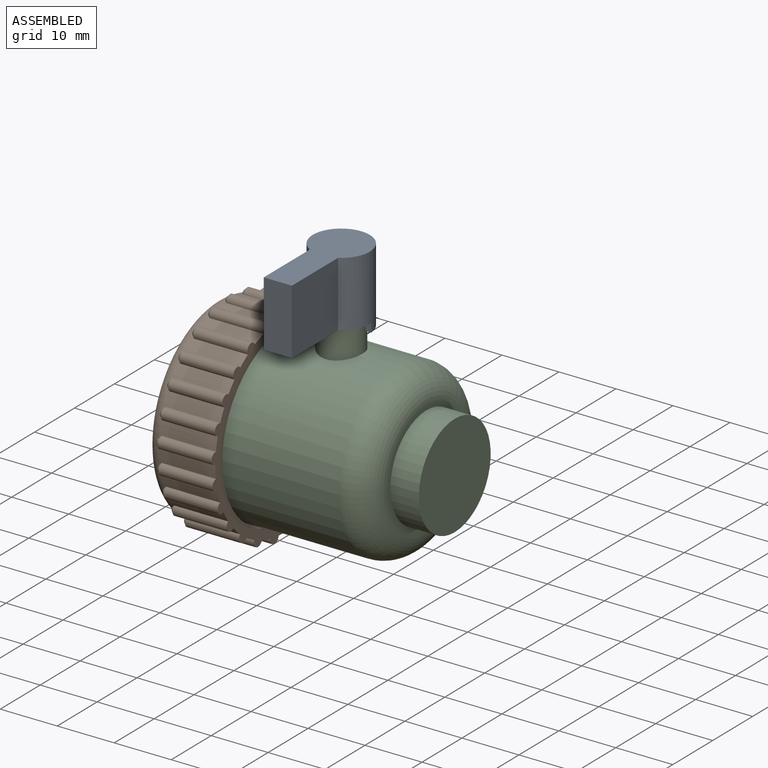
[diagram: assembled view]
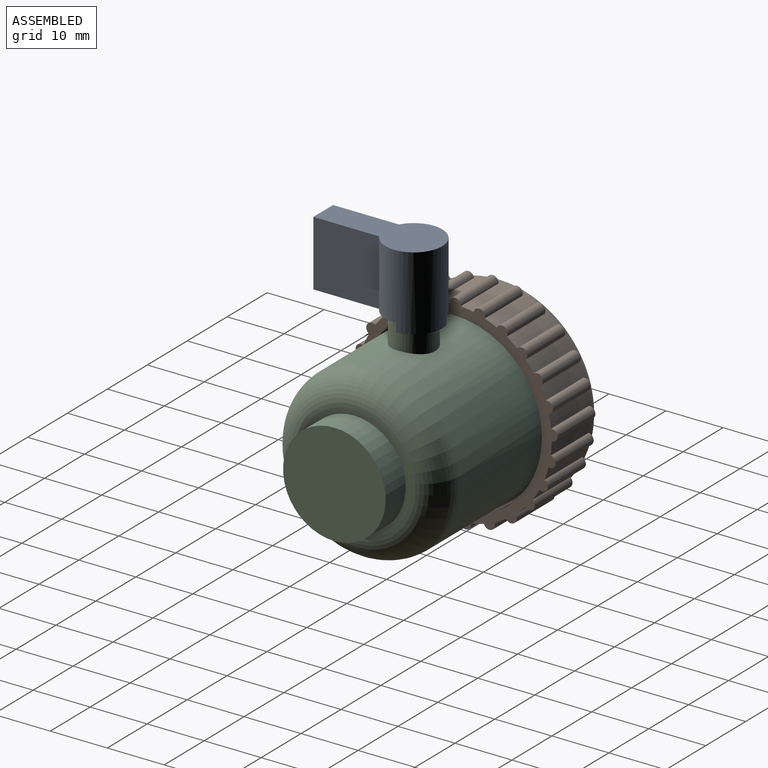
[diagram: assembled view, second angle]
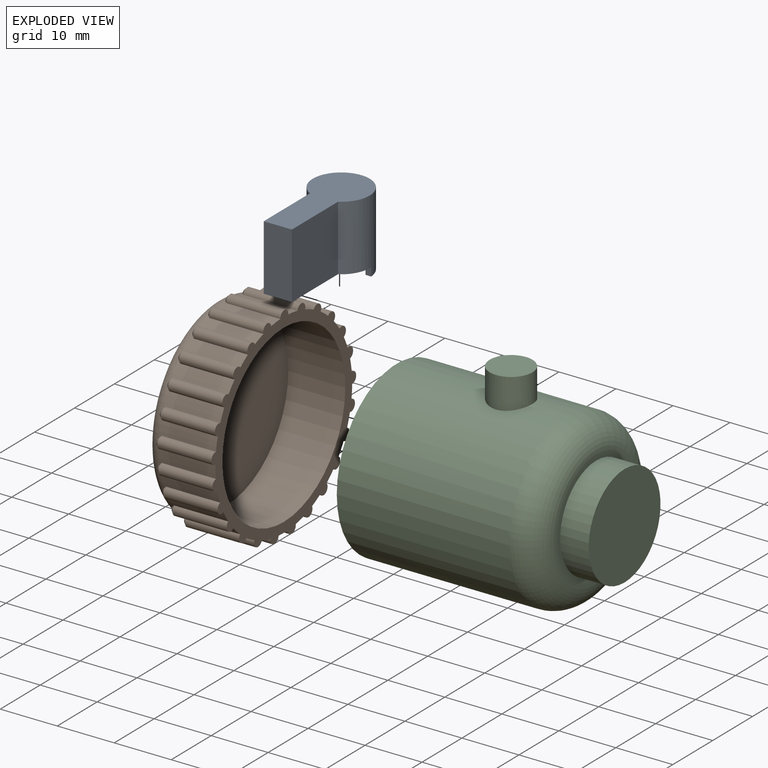
[diagram: exploded view]
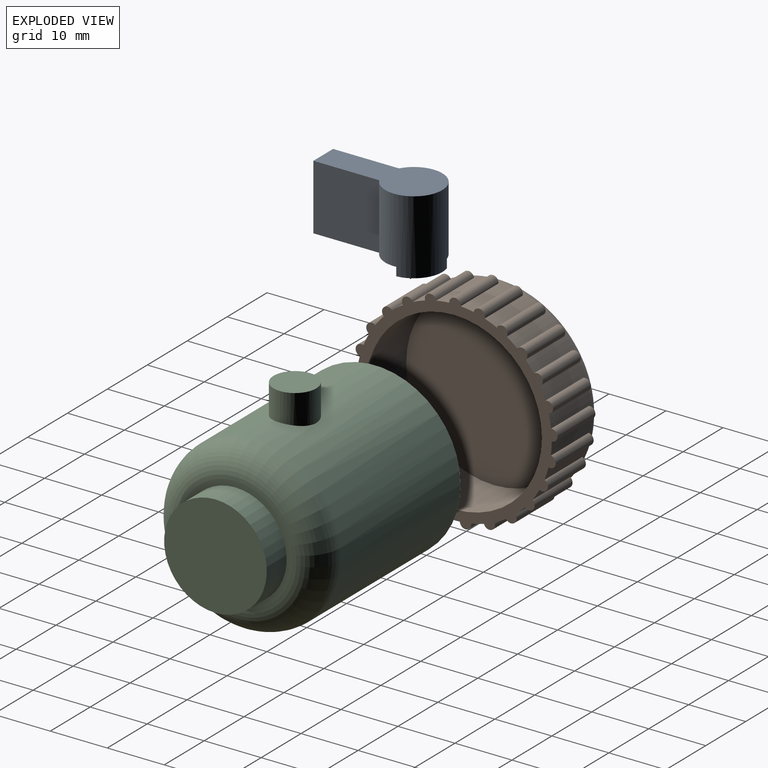
[diagram: exploded view, second angle]
ASSEMBLY  parts=3 mates=2
PART A: 14 faces, bbox 20.9x10x13 mm
  f0: plane 20.7x10mm, normal (0,0,-1), area 42.7mm2, adj f1,f3,f4,f5,f6,f8,f9,f10
  f1: cylinder r=5mm len=13mm, axis (0,0,-1), area 315.2mm2, adj f0,f2,f4,f5,f11,f12,f13
  f2: plane 20.9x10mm, normal (0,0,1), area 133.4mm2, adj f1,f3,f4,f5
  f3: plane 11.5x4.94mm, normal (-1,0,0), area 56.8mm2, adj f0,f2,f4,f5
  f4: plane 11.55x11.5mm, normal (0,-1,0), area 132.9mm2, adj f0,f1,f2,f3
  f5: plane 11.55x11.5mm, normal (0,1,0), area 132.9mm2, adj f0,f1,f2,f3
  f6: cylinder r=4mm len=12mm, axis (0,0,-1), area 243.3mm2, adj f0,f7,f9,f10,f11,f12,f13
  f7: plane 18.9x8mm, normal (0,0,-1), area 82.6mm2, adj f6,f8,f9,f10
  f8: plane 10.5x2.94mm, normal (1,0,0), area 30.9mm2, adj f0,f7,f9,f10
  f9: plane 11.18x10.5mm, normal (0,1,0), area 117.4mm2, adj f0,f6,f7,f8
  f10: plane 11.18x10.5mm, normal (0,-1,0), area 117.4mm2, adj f0,f6,f7,f8
  f11: plane 1.5x1mm, normal (-1,0,0), area 1.5mm2, adj f0,f1,f6,f13
  f12: plane 1.5x1.05mm, normal (0,1,0), area 1.6mm2, adj f0,f1,f6,f13
  f13: plane 6.4x4.61mm, normal (0,0,-1), area 8.1mm2, adj f1,f6,f11,f12
PART B: 105 faces, bbox 12x37.1x37.1 mm
  f0: cylinder r=17.13mm len=10mm, axis (-1,0,0), area 23.3mm2, adj f51,f86,f87,f88,f89,f104
  f1: cylinder r=17.13mm len=10mm, axis (-1,0,0), area 23.3mm2, adj f51,f84,f85,f86,f87,f104
  f2: cylinder r=17.13mm len=10mm, axis (-1,0,0), area 23.3mm2, adj f51,f82,f83,f84,f85,f104
  f3: cylinder r=17.13mm len=10mm, axis (-1,0,0), area 23.3mm2, adj f51,f80,f81,f82,f83,f104
  f4: cylinder r=17.13mm len=10mm, axis (-1,0,0), area 23.3mm2, adj f51,f78,f79,f80,f81,f104
  f5: cylinder r=17.13mm len=10mm, axis (-1,0,0), area 23.3mm2, adj f51,f76,f77,f78,f79,f104
  f6: cylinder r=17.13mm len=10mm, axis (-1,0,0), area 23.3mm2, adj f51,f74,f75,f76,f77,f104
  f7: cylinder r=17.13mm len=10mm, axis (-1,0,0), area 23.3mm2, adj f51,f72,f73,f74,f75,f104
  f8: cylinder r=17.13mm len=10mm, axis (-1,0,0), area 23.3mm2, adj f51,f70,f71,f72,f73,f104
  f9: cylinder r=17.13mm len=10mm, axis (-1,0,0), area 23.3mm2, adj f51,f68,f69,f70,f71,f104
  f10: cylinder r=17.13mm len=10mm, axis (-1,0,0), area 23.3mm2, adj f51,f66,f67,f68,f69,f104
  f11: cylinder r=17.13mm len=10mm, axis (-1,0,0), area 23.3mm2, adj f51,f64,f65,f66,f67,f104
  f12: cylinder r=17.13mm len=10mm, axis (-1,0,0), area 23.3mm2, adj f51,f62,f63,f64,f65,f104
  f13: cylinder r=17.13mm len=10mm, axis (-1,0,0), area 23.3mm2, adj f51,f60,f61,f62,f63,f104
  f14: cylinder r=17.13mm len=10mm, axis (-1,0,0), area 23.3mm2, adj f51,f58,f59,f60,f61,f104
  f15: cylinder r=17.13mm len=10mm, axis (-1,0,0), area 23.3mm2, adj f51,f56,f57,f58,f59,f104
  f16: cylinder r=17.13mm len=10mm, axis (-1,0,0), area 23.3mm2, adj f51,f54,f55,f56,f57,f104
  f17: cylinder r=17.13mm len=10mm, axis (-1,0,0), area 23.3mm2, adj f50,f51,f53,f54,f55,f104
  f18: cylinder r=17.13mm len=10mm, axis (-1,0,0), area 23.3mm2, adj f50,f51,f53,f100,f101,f104
  f19: cylinder r=17.13mm len=10mm, axis (-1,0,0), area 23.3mm2, adj f51,f98,f99,f100,f101,f104
  f20: cylinder r=17.13mm len=10mm, axis (-1,0,0), area 23.3mm2, adj f51,f96,f97,f98,f99,f104
  f21: cylinder r=17.13mm len=10mm, axis (-1,0,0), area 23.3mm2, adj f51,f94,f95,f96,f97,f104
  f22: cylinder r=17.13mm len=10mm, axis (-1,0,0), area 23.3mm2, adj f51,f92,f93,f94,f95,f104
  f23: cylinder r=17.13mm len=10mm, axis (-1,0,0), area 23.3mm2, adj f51,f90,f91,f92,f93,f104
  f24: plane 1x0.58mm, normal (-1,0,0), area 0.4mm2, adj f91,f104
  f25: plane 0.99x0.7mm, normal (-1,0,0), area 0.4mm2, adj f93,f104
  f26: plane 0.94x0.81mm, normal (-1,0,0), area 0.4mm2, adj f95,f104
  f27: plane 0.89x0.87mm, normal (-1,0,0), area 0.4mm2, adj f97,f104
  f28: plane 0.96x0.77mm, normal (-1,0,0), area 0.4mm2, adj f99,f104
  f29: plane 0.99x0.66mm, normal (-1,0,0), area 0.4mm2, adj f101,f104
  f30: plane 1x0.55mm, normal (-1,0,0), area 0.4mm2, adj f53,f104
  f31: plane 0.99x0.67mm, normal (-1,0,0), area 0.4mm2, adj f55,f104
  f32: plane 0.96x0.78mm, normal (-1,0,0), area 0.4mm2, adj f57,f104
  f33: plane 0.89x0.87mm, normal (-1,0,0), area 0.4mm2, adj f59,f104
  f34: plane 0.94x0.8mm, normal (-1,0,0), area 0.4mm2, adj f61,f104
  f35: plane 0.99x0.69mm, normal (-1,0,0), area 0.4mm2, adj f63,f104
  f36: plane 1x0.57mm, normal (-1,0,0), area 0.4mm2, adj f65,f104
  f37: plane 1x0.64mm, normal (-1,0,0), area 0.4mm2, adj f67,f104
  f38: plane 0.97x0.75mm, normal (-1,0,0), area 0.4mm2, adj f69,f104
  f39: plane 0.91x0.85mm, normal (-1,0,0), area 0.4mm2, adj f71,f104
  f40: plane 0.93x0.82mm, normal (-1,0,0), area 0.4mm2, adj f73,f104
  f41: plane 0.98x0.72mm, normal (-1,0,0), area 0.4mm2, adj f75,f104
  f42: plane 1x0.6mm, normal (-1,0,0), area 0.4mm2, adj f77,f104
  f43: plane 1x0.61mm, normal (-1,0,0), area 0.4mm2, adj f79,f104
  f44: plane 0.98x0.73mm, normal (-1,0,0), area 0.4mm2, adj f81,f104
  f45: plane 0.93x0.83mm, normal (-1,0,0), area 0.4mm2, adj f83,f104
  f46: plane 0.91x0.85mm, normal (-1,0,0), area 0.4mm2, adj f85,f104
  f47: plane 0.97x0.75mm, normal (-1,0,0), area 0.4mm2, adj f87,f104
  f48: cylinder r=17.13mm len=10mm, axis (-1,0,0), area 23.3mm2, adj f51,f88,f89,f90,f91,f104
  f49: cylinder r=15.4mm len=30.8mm, axis (-1,0,0), area 967.6mm2, adj f51,f103
  f50: cylinder r=1mm len=9.5mm, axis (-1,0,0), area 31mm2, adj f17,f18,f51,f53
  f51: plane 36.26x36.21mm, normal (1,0,0), area 218.4mm2, adj f0,f1,f2,f3,f4,f5,f6,f7
  f52: plane 1x0.63mm, normal (-1,0,0), area 0.4mm2, adj f89,f104
  f53: cone r=0.5mm half-angle=45deg, axis (1,0,0), area 1.7mm2, adj f17,f18,f30,f50
  f54: cylinder r=1mm len=9.5mm, axis (-1,0,0), area 31mm2, adj f16,f17,f51,f55
  f55: cone r=0.5mm half-angle=45deg, axis (1,0,0), area 1.7mm2, adj f16,f17,f31,f54
  f56: cylinder r=1mm len=9.5mm, axis (-1,0,0), area 31mm2, adj f15,f16,f51,f57
  f57: cone r=0.5mm half-angle=45deg, axis (1,0,0), area 1.7mm2, adj f15,f16,f32,f56
  f58: cylinder r=1mm len=9.5mm, axis (-1,0,0), area 31mm2, adj f14,f15,f51,f59
  f59: cone r=0.5mm half-angle=45deg, axis (1,0,0), area 1.7mm2, adj f14,f15,f33,f58
  f60: cylinder r=1mm len=9.5mm, axis (-1,0,0), area 31mm2, adj f13,f14,f51,f61
  f61: cone r=0.5mm half-angle=45deg, axis (1,0,0), area 1.7mm2, adj f13,f14,f34,f60
  f62: cylinder r=1mm len=9.5mm, axis (-1,0,0), area 31mm2, adj f12,f13,f51,f63
  f63: cone r=0.5mm half-angle=45deg, axis (1,0,0), area 1.7mm2, adj f12,f13,f35,f62
  f64: cylinder r=1mm len=9.5mm, axis (-1,0,0), area 31mm2, adj f11,f12,f51,f65
  f65: cone r=0.5mm half-angle=45deg, axis (1,0,0), area 1.7mm2, adj f11,f12,f36,f64
  f66: cylinder r=1mm len=9.5mm, axis (-1,0,0), area 31mm2, adj f10,f11,f51,f67
  f67: cone r=0.5mm half-angle=45deg, axis (1,0,0), area 1.7mm2, adj f10,f11,f37,f66
  f68: cylinder r=1mm len=9.5mm, axis (-1,0,0), area 31mm2, adj f9,f10,f51,f69
  f69: cone r=0.5mm half-angle=45deg, axis (1,0,0), area 1.7mm2, adj f9,f10,f38,f68
  f70: cylinder r=1mm len=9.5mm, axis (-1,0,0), area 31mm2, adj f8,f9,f51,f71
  f71: cone r=0.5mm half-angle=45deg, axis (1,0,0), area 1.7mm2, adj f8,f9,f39,f70
  f72: cylinder r=1mm len=9.5mm, axis (-1,0,0), area 31mm2, adj f7,f8,f51,f73
  f73: cone r=0.5mm half-angle=45deg, axis (1,0,0), area 1.7mm2, adj f7,f8,f40,f72
  f74: cylinder r=1mm len=9.5mm, axis (-1,0,0), area 31mm2, adj f6,f7,f51,f75
  f75: cone r=0.5mm half-angle=45deg, axis (1,0,0), area 1.7mm2, adj f6,f7,f41,f74
  f76: cylinder r=1mm len=9.5mm, axis (-1,0,0), area 31mm2, adj f5,f6,f51,f77
  f77: cone r=0.5mm half-angle=45deg, axis (1,0,0), area 1.7mm2, adj f5,f6,f42,f76
  f78: cylinder r=1mm len=9.5mm, axis (-1,0,0), area 31mm2, adj f4,f5,f51,f79
  f79: cone r=0.5mm half-angle=45deg, axis (1,0,0), area 1.7mm2, adj f4,f5,f43,f78
  f80: cylinder r=1mm len=9.5mm, axis (-1,0,0), area 31mm2, adj f3,f4,f51,f81
  f81: cone r=0.5mm half-angle=45deg, axis (1,0,0), area 1.7mm2, adj f3,f4,f44,f80
  f82: cylinder r=1mm len=9.5mm, axis (-1,0,0), area 31mm2, adj f2,f3,f51,f83
  f83: cone r=0.5mm half-angle=45deg, axis (1,0,0), area 1.7mm2, adj f2,f3,f45,f82
  f84: cylinder r=1mm len=9.5mm, axis (-1,0,0), area 31mm2, adj f1,f2,f51,f85
  f85: cone r=0.5mm half-angle=45deg, axis (1,0,0), area 1.7mm2, adj f1,f2,f46,f84
  f86: cylinder r=1mm len=9.5mm, axis (-1,0,0), area 31mm2, adj f0,f1,f51,f87
  f87: cone r=0.5mm half-angle=45deg, axis (1,0,0), area 1.7mm2, adj f0,f1,f47,f86
  f88: cylinder r=1mm len=9.5mm, axis (-1,0,0), area 31mm2, adj f0,f48,f51,f89
  f89: cone r=0.5mm half-angle=45deg, axis (1,0,0), area 1.7mm2, adj f0,f48,f52,f88
  f90: cylinder r=1mm len=9.5mm, axis (-1,0,0), area 31mm2, adj f23,f48,f51,f91
  f91: cone r=0.5mm half-angle=45deg, axis (1,0,0), area 1.7mm2, adj f23,f24,f48,f90
  f92: cylinder r=1mm len=9.5mm, axis (-1,0,0), area 31mm2, adj f22,f23,f51,f93
  f93: cone r=0.5mm half-angle=45deg, axis (1,0,0), area 1.7mm2, adj f22,f23,f25,f92
  f94: cylinder r=1mm len=9.5mm, axis (-1,0,0), area 31mm2, adj f21,f22,f51,f95
  f95: cone r=0.5mm half-angle=45deg, axis (1,0,0), area 1.7mm2, adj f21,f22,f26,f94
  f96: cylinder r=1mm len=9.5mm, axis (-1,0,0), area 31mm2, adj f20,f21,f51,f97
  f97: cone r=0.5mm half-angle=45deg, axis (1,0,0), area 1.7mm2, adj f20,f21,f27,f96
  f98: cylinder r=1mm len=9.5mm, axis (-1,0,0), area 31mm2, adj f19,f20,f51,f99
  f99: cone r=0.5mm half-angle=45deg, axis (1,0,0), area 1.7mm2, adj f19,f20,f28,f98
  f100: cylinder r=1mm len=9.5mm, axis (-1,0,0), area 31mm2, adj f18,f19,f51,f101
  f101: cone r=0.5mm half-angle=45deg, axis (1,0,0), area 1.7mm2, adj f18,f19,f29,f100
  f102: plane 30.26x30.26mm, normal (-1,0,0), area 719.3mm2, adj f104
  f103: plane 30.8x30.8mm, normal (1,0,0), area 745mm2, adj f49
  f104: torus R=15.13mm, axis (-1,0,0), area 323.8mm2, adj f0,f1,f2,f3,f4,f5,f6,f7
PART C: 8 faces, bbox 40x32.5x36.2 mm
  f0: cylinder r=15mm len=30mm, axis (1,0,0), area 2782.8mm2, adj f4,f5,f7
  f1: cylinder r=9mm len=18mm, axis (-1,0,0), area 282.7mm2, adj f2,f3
  f2: plane 18x18mm, normal (1,0,0), area 254.5mm2, adj f1
  f3: plane 20x20mm, normal (1,0,0), area 59.7mm2, adj f1,f4
  f4: torus R=10mm, axis (-1,0,0), area 650.6mm2, adj f0,f3
  f5: cylinder r=3.75mm len=7.5mm, axis (0,0,-1), area 123.4mm2, adj f0,f6
  f6: plane 7.5x7.5mm, normal (0,0,1), area 44.2mm2, adj f5
  f7: plane 30x30mm, normal (-1,0,0), area 706.9mm2, adj f0
PLACE A rot(axis=(0,0,1),90deg) t=(26.25,40.2,20.19)mm
PLACE B t=(48.01,8.9,17.19)mm
PLACE C t=(48.01,8.9,17.19)mm
MATE fastened A.f1 <-> C.f5  axis (0,0,-1) through (11.59,8.9,37.19)mm
MATE fastened B.f0 <-> C.f0  axis (1,0,0) through (-8.49,8.9,17.19)mm
